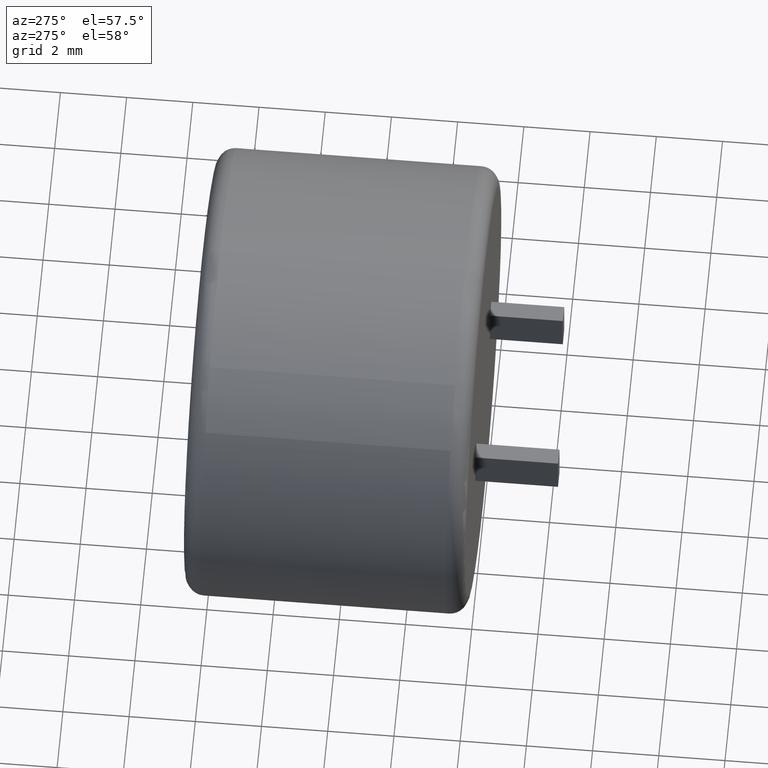
[diagram: clean part render]
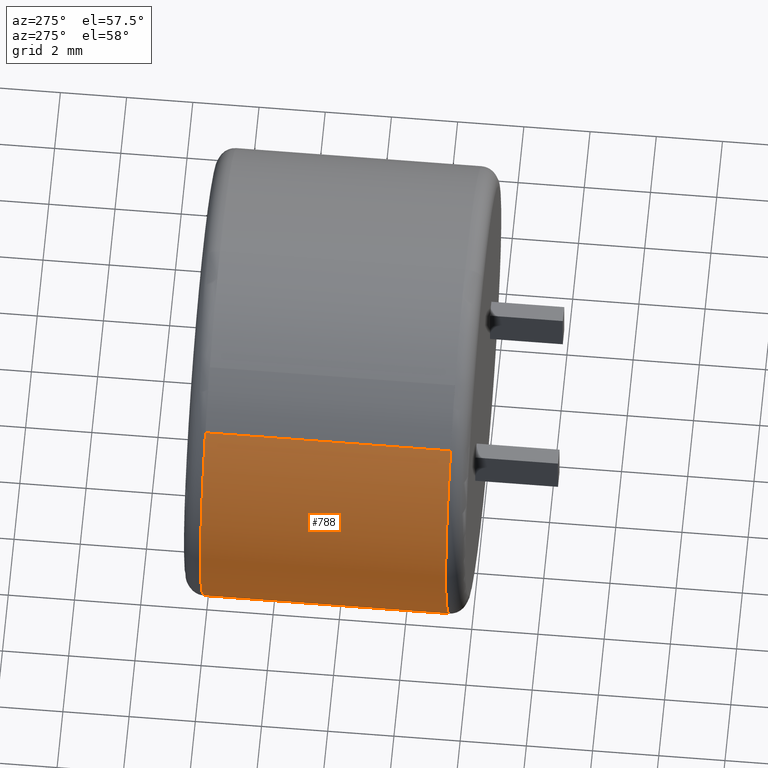
[diagram: same view with one face highlighted and labeled with its STEP entity id]
A machine part, auxiliary view. The second image highlights one B-rep face of the part: STEP entity #788.
In plain terms, the highlighted cylindrical surface (partial cylindrical patch) has radius 6.75 mm, axis along (-0, -1, -0).
Its self-contained STEP definition (entity closure, byte-faithful):
#67 = VERTEX_POINT ( 'NONE', #2406 ) ;
#84 = ORIENTED_EDGE ( 'NONE', *, *, #2593, .T. ) ;
#270 = LINE ( 'NONE', #1332, #2658 ) ;
#301 = DIRECTION ( 'NONE',  ( -0.0000000000000000000, -1.000000000000000000, -0.0000000000000000000 ) ) ;
#406 = CARTESIAN_POINT ( 'NONE',  ( 0.0000000000000000000, 0.5482500000000001300, -6.750000000000000000 ) ) ;
#588 = DIRECTION ( 'NONE',  ( -0.0000000000000000000, -1.000000000000000000, -0.0000000000000000000 ) ) ;
#621 = CARTESIAN_POINT ( 'NONE',  ( -5.047477323014629900, 7.951750000000000500, 4.481681902327860500 ) ) ;
#632 = LINE ( 'NONE', #621, #2283 ) ;
#647 = EDGE_CURVE ( 'NONE', #1338, #2385, #942, .T. ) ;
#734 = CARTESIAN_POINT ( 'NONE',  ( 0.0000000000000000000, 7.951750000000000500, 0.0000000000000000000 ) ) ;
#740 = ORIENTED_EDGE ( 'NONE', *, *, #936, .F. ) ;
#744 = DIRECTION ( 'NONE',  ( 0.0000000000000000000, 0.0000000000000000000, 1.000000000000000000 ) ) ;
#788 = ADVANCED_FACE ( 'NONE', ( #2615 ), #904, .T. ) ;
#867 = CARTESIAN_POINT ( 'NONE',  ( 0.0000000000000000000, 0.5482500000000001300, 0.0000000000000000000 ) ) ;
#904 = CYLINDRICAL_SURFACE ( 'NONE', #2428, 6.750000000000000000 ) ;
#923 = VERTEX_POINT ( 'NONE', #406 ) ;
#930 = CIRCLE ( 'NONE', #2345, 6.750000000000000000 ) ;
#936 = EDGE_CURVE ( 'NONE', #1338, #67, #632, .T. ) ;
#942 = CIRCLE ( 'NONE', #1454, 6.750000000000000000 ) ;
#995 = CARTESIAN_POINT ( 'NONE',  ( 0.0000000000000000000, 8.500000000000000000, 0.0000000000000000000 ) ) ;
#1171 = DIRECTION ( 'NONE',  ( 0.0000000000000000000, 0.0000000000000000000, 1.000000000000000000 ) ) ;
#1332 = CARTESIAN_POINT ( 'NONE',  ( 0.0000000000000000000, 8.500000000000000000, -6.750000000000000000 ) ) ;
#1338 = VERTEX_POINT ( 'NONE', #1343 ) ;
#1343 = CARTESIAN_POINT ( 'NONE',  ( -5.047477323014629000, 7.951750000000000500, 4.481681902327861300 ) ) ;
#1454 = AXIS2_PLACEMENT_3D ( 'NONE', #734, #301, #744 ) ;
#1573 = EDGE_CURVE ( 'NONE', #923, #67, #930, .T. ) ;
#1680 = CARTESIAN_POINT ( 'NONE',  ( 0.0000000000000000000, 7.951750000000000500, -6.750000000000000000 ) ) ;
#1814 = DIRECTION ( 'NONE',  ( 0.0000000000000000000, 1.000000000000000000, 0.0000000000000000000 ) ) ;
#2012 = ORIENTED_EDGE ( 'NONE', *, *, #647, .T. ) ;
#2283 = VECTOR ( 'NONE', #2549, 1000.000000000000000 ) ;
#2345 = AXIS2_PLACEMENT_3D ( 'NONE', #867, #1814, #1171 ) ;
#2385 = VERTEX_POINT ( 'NONE', #1680 ) ;
#2388 = ORIENTED_EDGE ( 'NONE', *, *, #1573, .T. ) ;
#2406 = CARTESIAN_POINT ( 'NONE',  ( -5.047477323014629000, 0.5482500000000001300, 4.481681902327861300 ) ) ;
#2417 = DIRECTION ( 'NONE',  ( -0.0000000000000000000, -1.000000000000000000, -0.0000000000000000000 ) ) ;
#2428 = AXIS2_PLACEMENT_3D ( 'NONE', #995, #588, #2730 ) ;
#2549 = DIRECTION ( 'NONE',  ( 0.0000000000000000000, -1.000000000000000000, 0.0000000000000000000 ) ) ;
#2593 = EDGE_CURVE ( 'NONE', #2385, #923, #270, .T. ) ;
#2615 = FACE_OUTER_BOUND ( 'NONE', #2731, .T. ) ;
#2658 = VECTOR ( 'NONE', #2417, 1000.000000000000000 ) ;
#2730 = DIRECTION ( 'NONE',  ( 0.0000000000000000000, 0.0000000000000000000, -1.000000000000000000 ) ) ;
#2731 = EDGE_LOOP ( 'NONE', ( #2012, #84, #2388, #740 ) ) ;